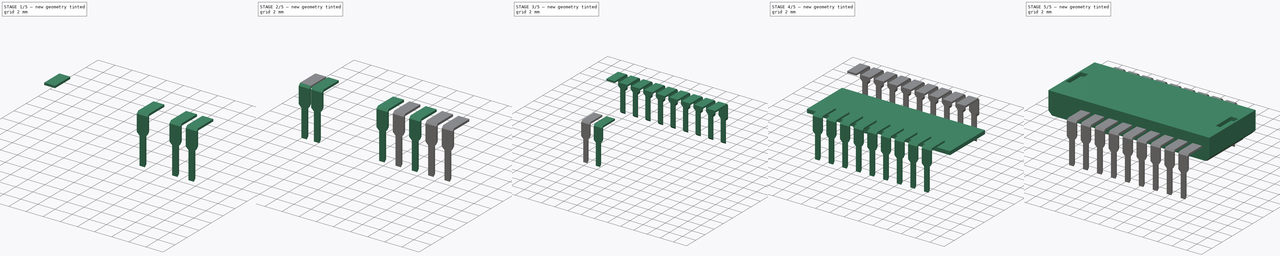
[diagram: build sequence overview — one tinted view per stage of 5, left to right]
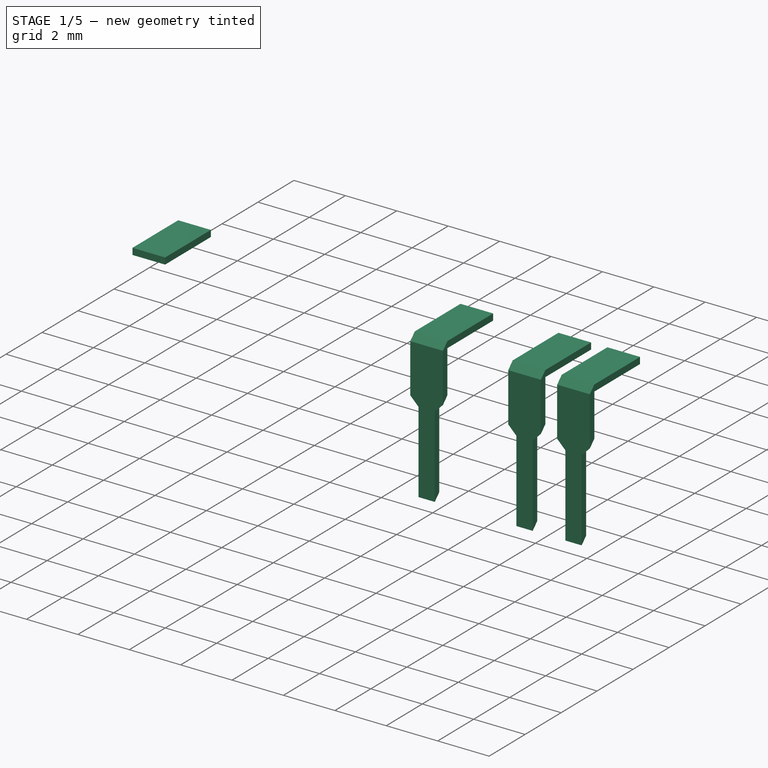
[diagram: stage 1 of 5 — iso view after this stage's code; geometry added in this stage tinted green]
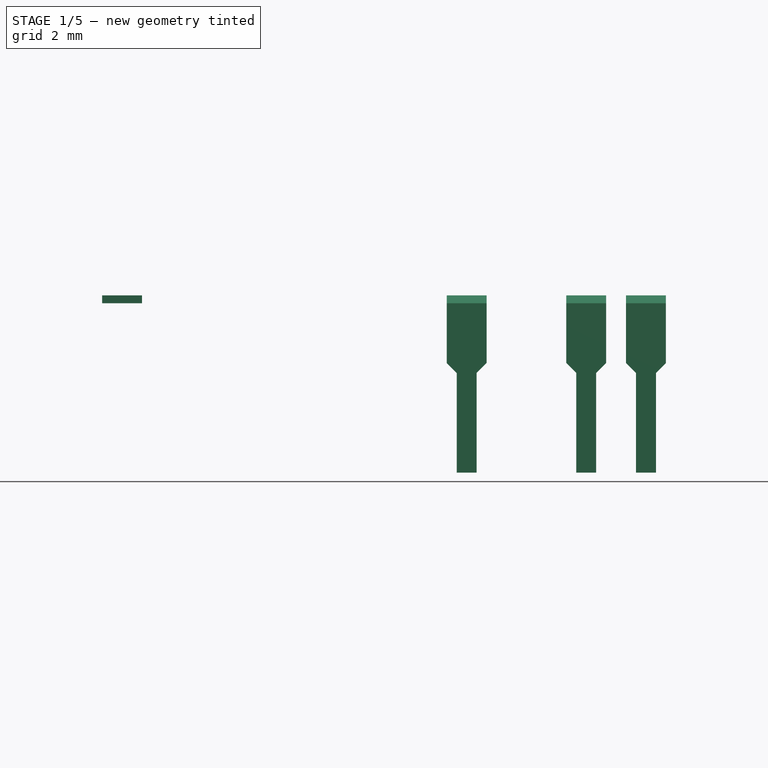
[diagram: stage 1 of 5 — front view after this stage's code; geometry added in this stage tinted green]
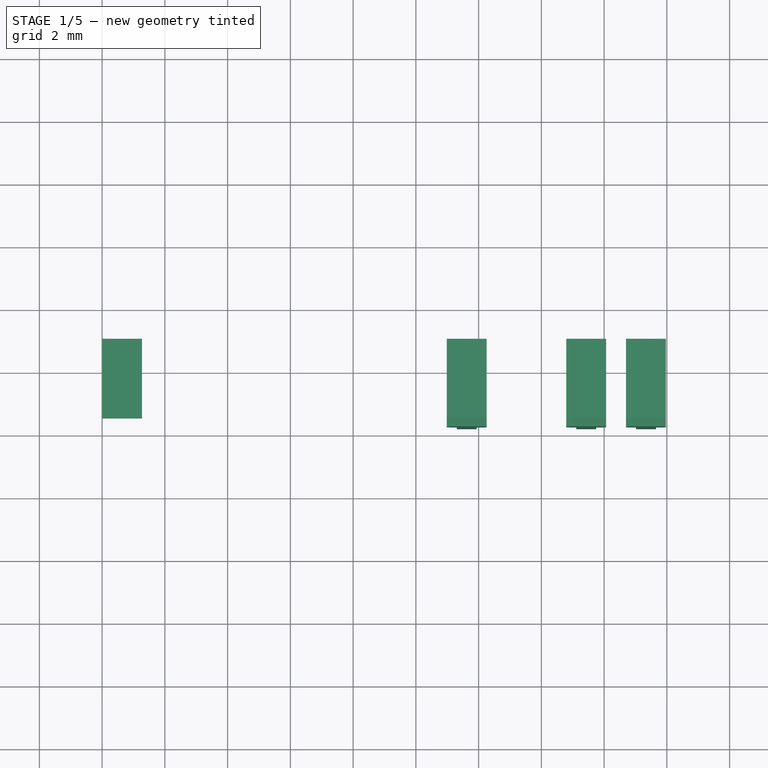
[diagram: stage 1 of 5 — top view after this stage's code; geometry added in this stage tinted green]
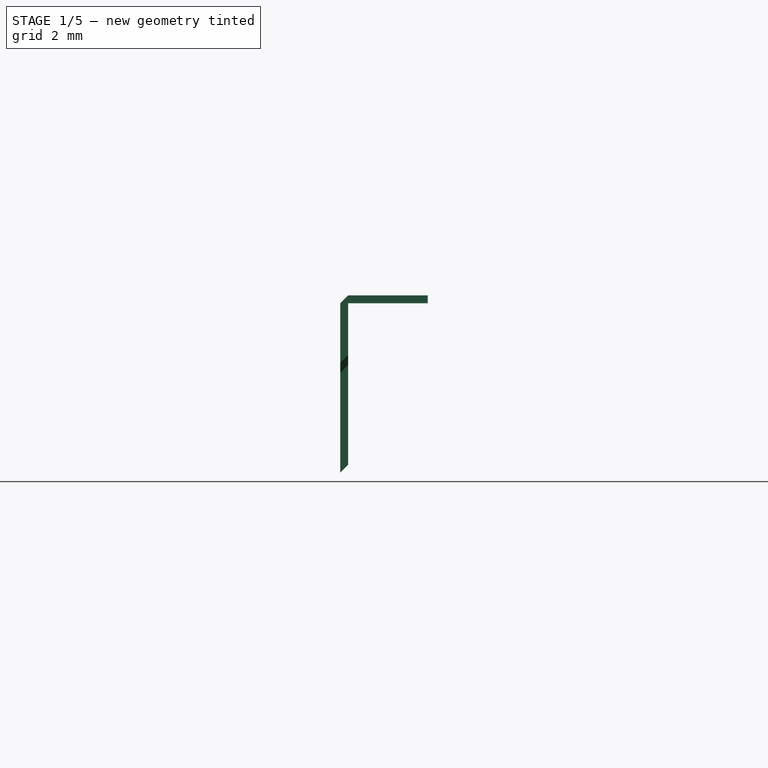
[diagram: stage 1 of 5 — right view after this stage's code; geometry added in this stage tinted green]
FCSTD DOCUMENT  (FreeCAD 0.14R3702 (Git))
Label: adns3080
License: CC-BY 3.0
LicenseURL: http://creativecommons.org/licenses/by/3.0/
objects: Part::Extrusion×23, Part::MultiFuse×21, Sketcher::SketchObject×7, Part::Compound×3, Part::Chamfer×2, Part::Cut×1
note: 57 computed .brp shape members not serialized (recipe doc carries the construction recipe); baked Part::Feature solids carry a one-line shape summary decoded from their .brp

FEATURE [Sketcher::SketchObject] Sketch004
  Placement = pos=(2,1,3) rot=(0,0,1;0rad)
  sketch-geometry (4):
    g0: LineSegment StartX=0 StartY=0 StartZ=0 EndX=0 EndY=-2.54 EndZ=0
    g1: LineSegment StartX=0 StartY=-2.54 StartZ=0 EndX=1.27 EndY=-2.54 EndZ=0
    g2: LineSegment StartX=0 StartY=0 StartZ=0 EndX=1.27 EndY=0 EndZ=0
    g3: LineSegment StartX=1.27 StartY=-2.54 StartZ=0 EndX=1.27 EndY=0 EndZ=0
  constraints (8):
    c: Coincident(g0,g-1)
    c: PointOnObject(g0,g-2)
    c: Coincident(g1,g0)
    c: Horizontal(g1)
    c: Coincident(g2,g-1)
    c: Horizontal(g2)
    c: Coincident(g3,g1)
    c: Vertical(g3)
FEATURE [Sketcher::SketchObject] Sketch005
  Placement = pos=(2,-1.5,3) rot=(1,0,0;1.5708rad)
  sketch-geometry (8):
    g0: LineSegment StartX=0 StartY=0 StartZ=0 EndX=1.27 EndY=0 EndZ=0
    g1: LineSegment StartX=0 StartY=0 StartZ=0 EndX=0 EndY=-1.905 EndZ=0
    g2: LineSegment StartX=0 StartY=-1.905 StartZ=0 EndX=0.3175 EndY=-2.2225 EndZ=0
    g3: LineSegment StartX=1.27 StartY=-1.905 StartZ=0 EndX=0.9525 EndY=-2.2225 EndZ=0
    g4: LineSegment StartX=1.27 StartY=0 StartZ=0 EndX=1.27 EndY=-1.905 EndZ=0
    g5: LineSegment StartX=0.3175 StartY=-2.2225 StartZ=0 EndX=0.3175 EndY=-5.3975 EndZ=0
    g6: LineSegment StartX=0.3175 StartY=-5.3975 StartZ=0 EndX=0.9525 EndY=-5.3975 EndZ=0
    g7: LineSegment StartX=0.9525 StartY=-5.3975 StartZ=0 EndX=0.9525 EndY=-2.2225 EndZ=0
  constraints (15):
    c: Coincident(g0,g-1)
    c: Horizontal(g0)
    c: Coincident(g1,g-1)
    c: Vertical(g1)
    c: Coincident(g2,g1)
    c: Coincident(g4,g0)
    c: Coincident(g4,g3)
    c: Vertical(g4)
    c: Coincident(g5,g2)
    c: Vertical(g5)
    c: Coincident(g6,g5)
    c: Horizontal(g6)
    c: Coincident(g7,g6)
    c: Coincident(g7,g3)
    c: Vertical(g7)
FEATURE [Part::Extrusion] Extrude016
  Base = -> Sketch005
  Dir = (0,0.25,0.25)
  Placement = pos=(0,-0.29,0.001) rot=(0,0,1;0rad)
  Solid = true
FEATURE [Part::Extrusion] Extrude017
  Base = -> Sketch004
  Dir = (0,0,0.25)
  Solid = true
FEATURE [Part::Extrusion] Extrude019
  Base = -> Sketch005
  Dir = (0,0.25,0.25)
  Placement = pos=(0,-0.29,0.001) rot=(0,0,1;0rad)
  Solid = true
FEATURE [Part::Extrusion] Extrude020
  Base = -> Sketch004
  Dir = (0,0,0.25)
  Solid = true
FEATURE [Part::Extrusion] Extrude021
  Base = -> Sketch005
  Dir = (0,0.25,0.25)
  Placement = pos=(0,-0.29,0.001) rot=(0,0,1;0rad)
  Solid = true
FEATURE [Part::Extrusion] Extrude022
  Base = -> Sketch004
  Dir = (0,0,0.25)
  Solid = true
FEATURE [Part::Extrusion] Extrude024
  Base = -> Sketch004
  Dir = (0,0,0.25)
  Solid = true
FEATURE [Part::MultiFuse] Fusion036
  Placement = pos=(10.985,0,0) rot=(0,0,1;0rad)
  Shapes = -> [Extrude022,Extrude021]
FEATURE [Part::MultiFuse] Fusion037
  Placement = pos=(14.795,0,0) rot=(0,0,1;0rad)
  Shapes = -> [Extrude020,Extrude019]
FEATURE [Part::MultiFuse] Fusion038
  Placement = pos=(16.7,0,0) rot=(0,0,1;0rad)
  Shapes = -> [Extrude017,Extrude016]
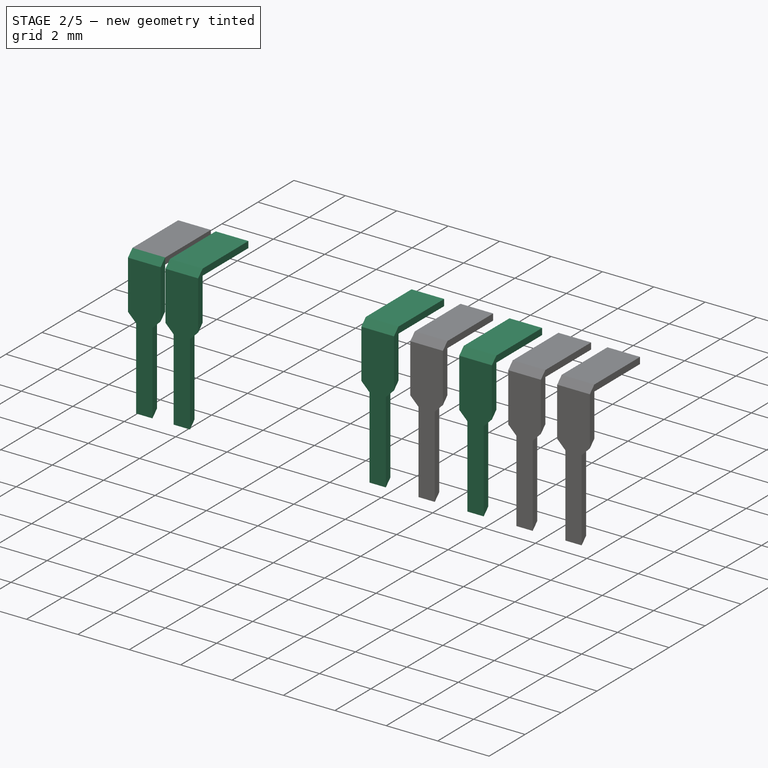
[diagram: stage 2 of 5 — iso view after this stage's code; geometry added in this stage tinted green]
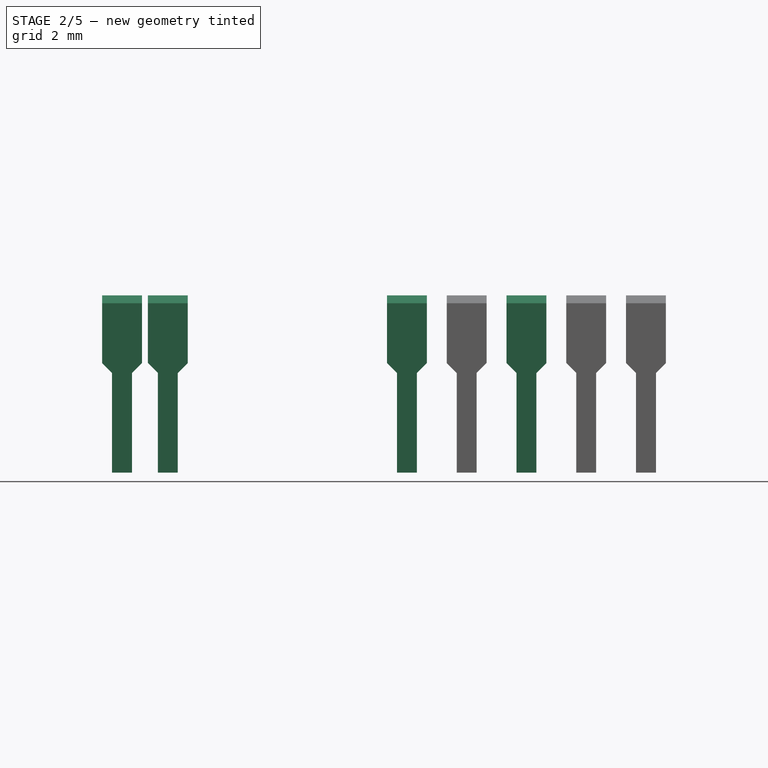
[diagram: stage 2 of 5 — front view after this stage's code; geometry added in this stage tinted green]
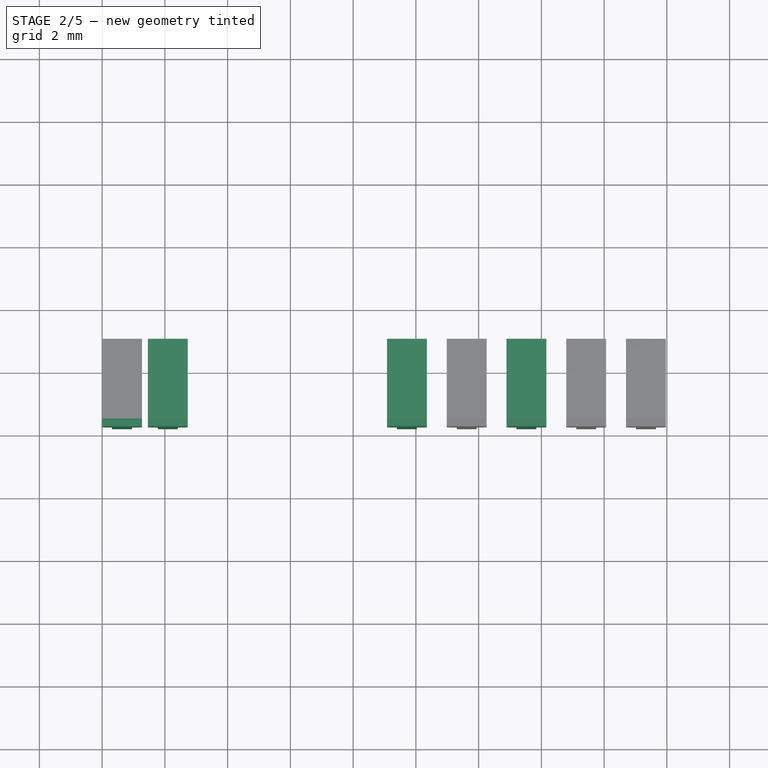
[diagram: stage 2 of 5 — top view after this stage's code; geometry added in this stage tinted green]
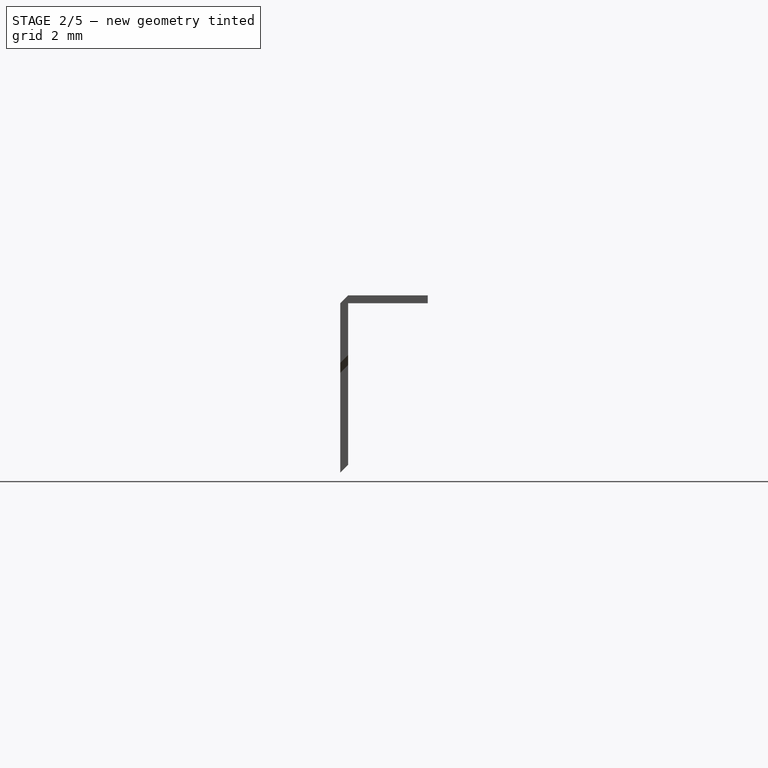
[diagram: stage 2 of 5 — right view after this stage's code; geometry added in this stage tinted green]
FEATURE [Part::Extrusion] Extrude023
  Base = -> Sketch005
  Dir = (0,0.25,0.25)
  Placement = pos=(0,-0.29,0.001) rot=(0,0,1;0rad)
  Solid = true
FEATURE [Part::Extrusion] Extrude025
  Base = -> Sketch004
  Dir = (0,0,0.25)
  Solid = true
FEATURE [Part::Extrusion] Extrude029
  Base = -> Sketch005
  Dir = (0,0.25,0.25)
  Placement = pos=(0,-0.29,0.001) rot=(0,0,1;0rad)
  Solid = true
FEATURE [Part::Extrusion] Extrude031
  Base = -> Sketch005
  Dir = (0,0.25,0.25)
  Placement = pos=(0,-0.29,0.001) rot=(0,0,1;0rad)
  Solid = true
FEATURE [Part::Extrusion] Extrude032
  Base = -> Sketch004
  Dir = (0,0,0.25)
  Solid = true
FEATURE [Part::Extrusion] Extrude033
  Base = -> Sketch005
  Dir = (0,0.25,0.25)
  Placement = pos=(0,-0.29,0.001) rot=(0,0,1;0rad)
  Solid = true
FEATURE [Part::Extrusion] Extrude034
  Base = -> Sketch004
  Dir = (0,0,0.25)
  Solid = true
FEATURE [Part::MultiFuse] Fusion033
  Placement = pos=(1.46,0,0) rot=(0,0,1;0rad)
  Shapes = -> [Extrude034,Extrude033]
FEATURE [Part::MultiFuse] Fusion034
  Placement = pos=(9.08,0,0) rot=(0,0,1;0rad)
  Shapes = -> [Extrude025,Extrude029]
FEATURE [Part::MultiFuse] Fusion035
  Placement = pos=(12.89,0,0) rot=(0,0,1;0rad)
  Shapes = -> [Extrude024,Extrude023]
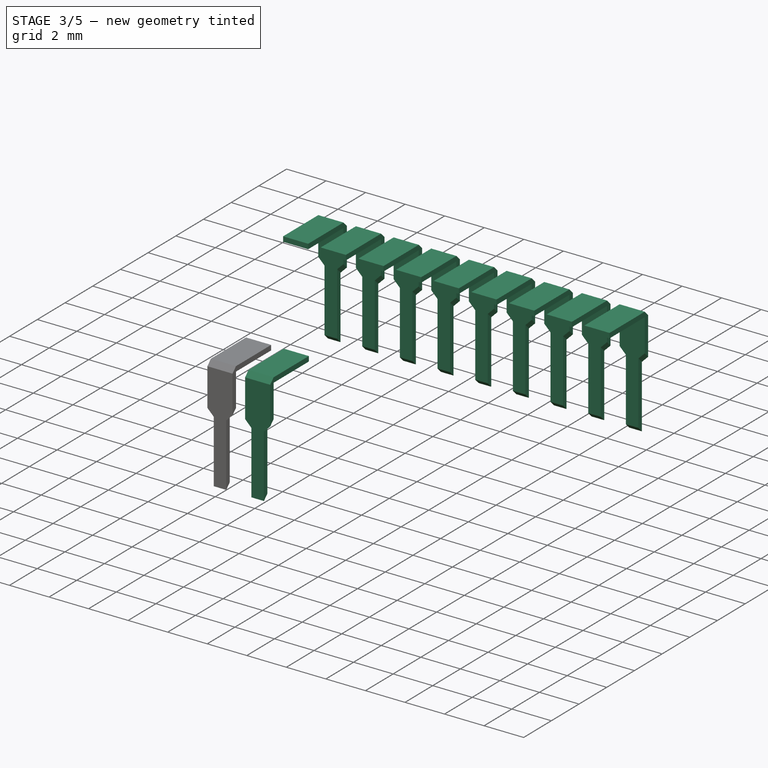
[diagram: stage 3 of 5 — iso view after this stage's code; geometry added in this stage tinted green]
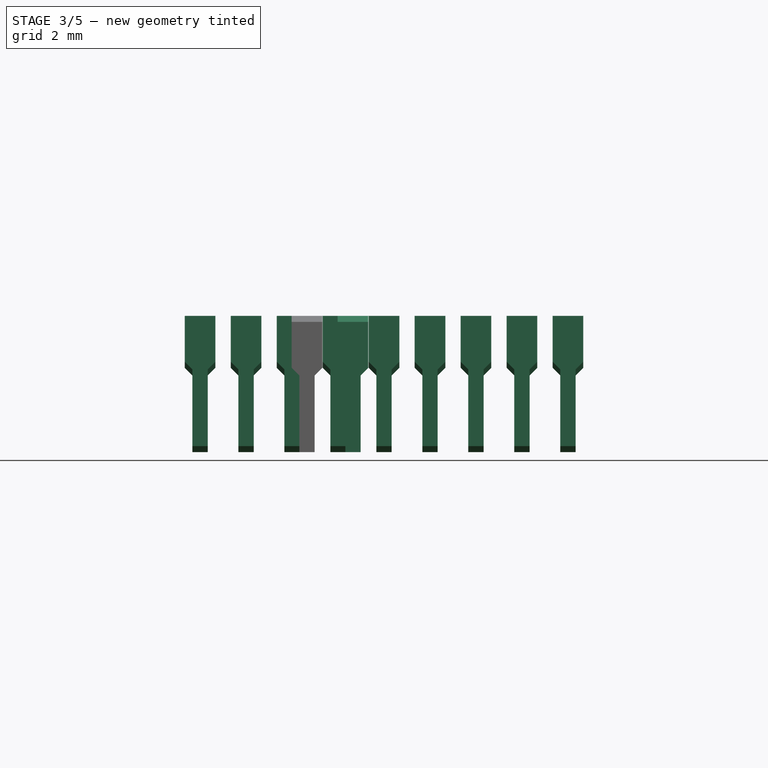
[diagram: stage 3 of 5 — front view after this stage's code; geometry added in this stage tinted green]
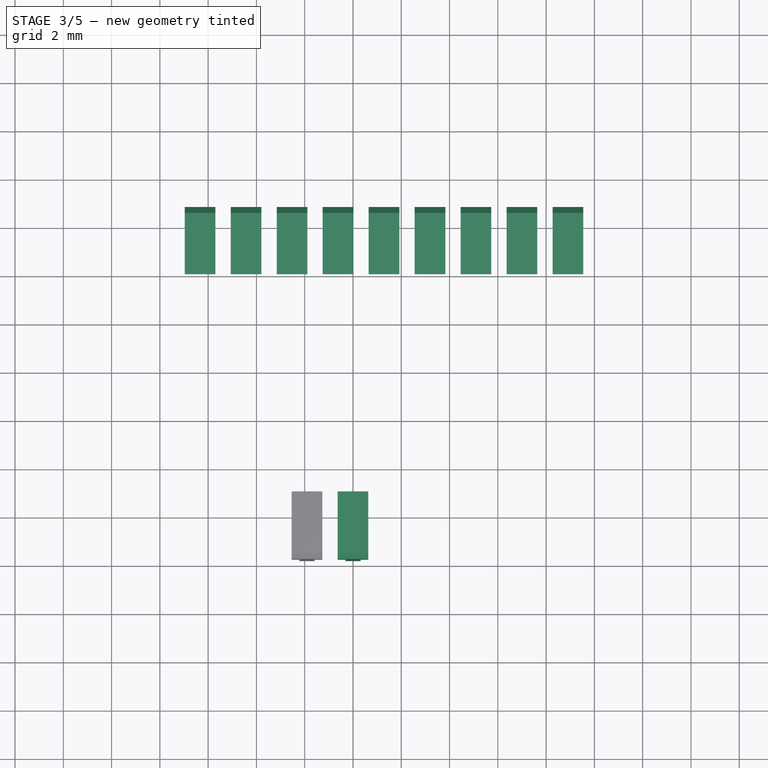
[diagram: stage 3 of 5 — top view after this stage's code; geometry added in this stage tinted green]
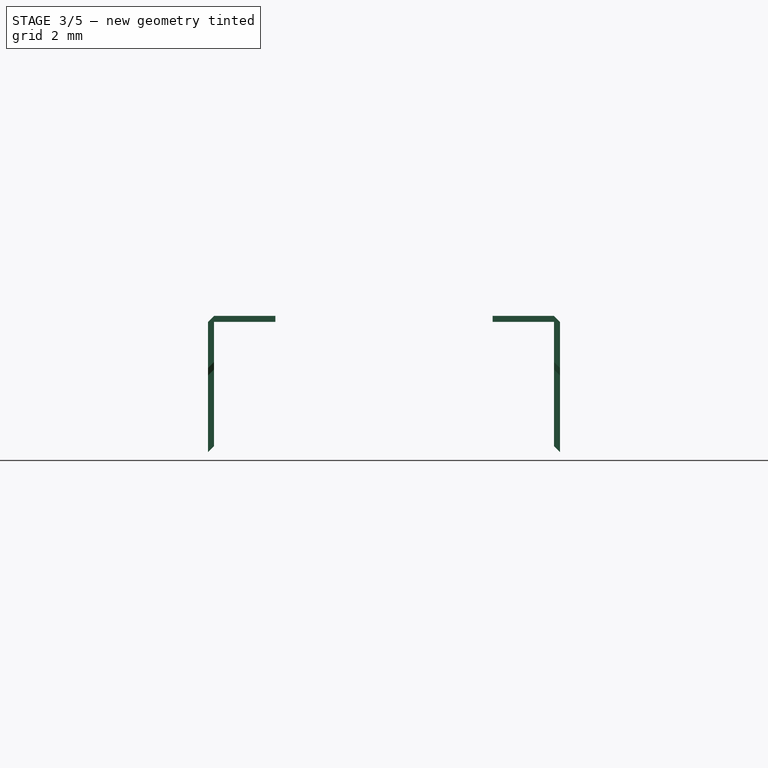
[diagram: stage 3 of 5 — right view after this stage's code; geometry added in this stage tinted green]
FEATURE [Part::Extrusion] Extrude026
  Base = -> Sketch005
  Dir = (0,0.25,0.25)
  Placement = pos=(0,-0.29,0.001) rot=(0,0,1;0rad)
  Solid = true
FEATURE [Part::Extrusion] Extrude027
  Base = -> Sketch004
  Dir = (0,0,0.25)
  Solid = true
FEATURE [Part::Extrusion] Extrude028
  Base = -> Sketch005
  Dir = (0,0.25,0.25)
  Placement = pos=(0,-0.29,0.001) rot=(0,0,1;0rad)
  Solid = true
FEATURE [Part::Extrusion] Extrude030
  Base = -> Sketch004
  Dir = (0,0,0.25)
  Solid = true
FEATURE [Part::MultiFuse] Fusion028
  Placement = pos=(3.365,0,0) rot=(0,0,1;0rad)
  Shapes = -> [Extrude030,Extrude028]
FEATURE [Part::MultiFuse] Fusion029
  Placement = pos=(1.46,0,0) rot=(0,0,1;0rad)
  Shapes = -> [Extrude034,Extrude033]
FEATURE [Part::MultiFuse] Fusion030
  Placement = pos=(7.175,0,0) rot=(0,0,1;0rad)
  Shapes = -> [Extrude027,Extrude026]
FEATURE [Part::MultiFuse] Fusion031
  Placement = pos=(3.365,0,0) rot=(0,0,1;0rad)
  Shapes = -> [Extrude030,Extrude028]
FEATURE [Part::MultiFuse] Fusion032
  Placement = pos=(5.27,0,0) rot=(0,0,1;0rad)
  Shapes = -> [Extrude032,Extrude031]
FEATURE [Part::Compound] Compound001  label="pins002"
  Links = -> [Fusion038,Fusion037,Fusion036,Fusion035,Fusion034,Fusion032,Fusion030,Fusion031,Fusion033]
  Placement = pos=(19,11,0) rot=(0,0,1;3.14159rad)
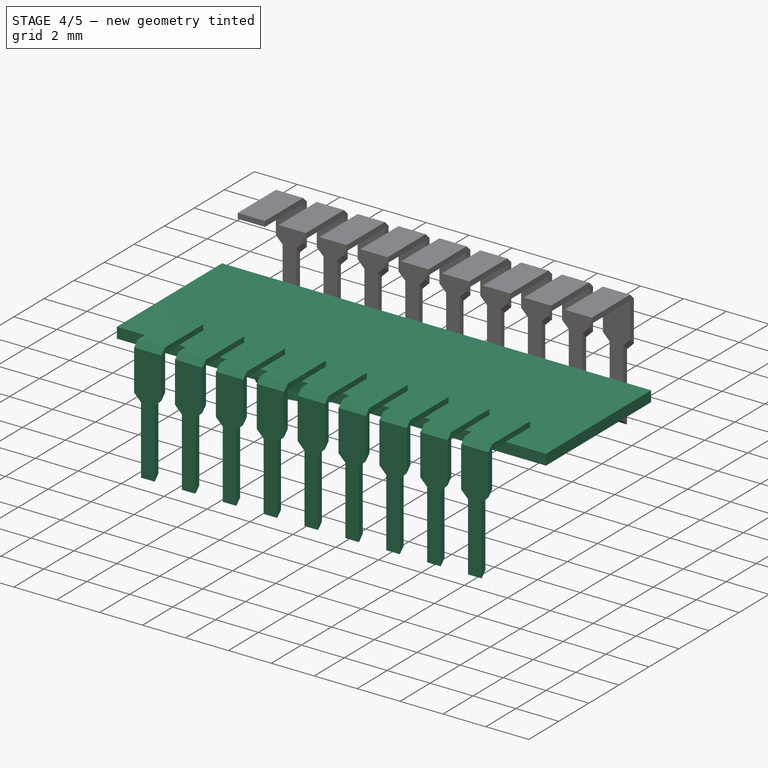
[diagram: stage 4 of 5 — iso view after this stage's code; geometry added in this stage tinted green]
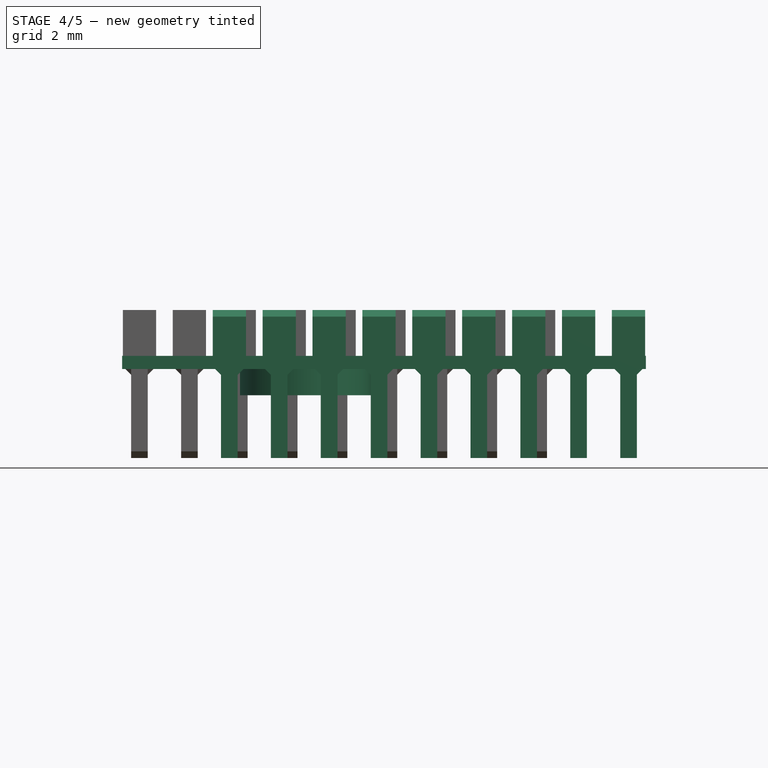
[diagram: stage 4 of 5 — front view after this stage's code; geometry added in this stage tinted green]
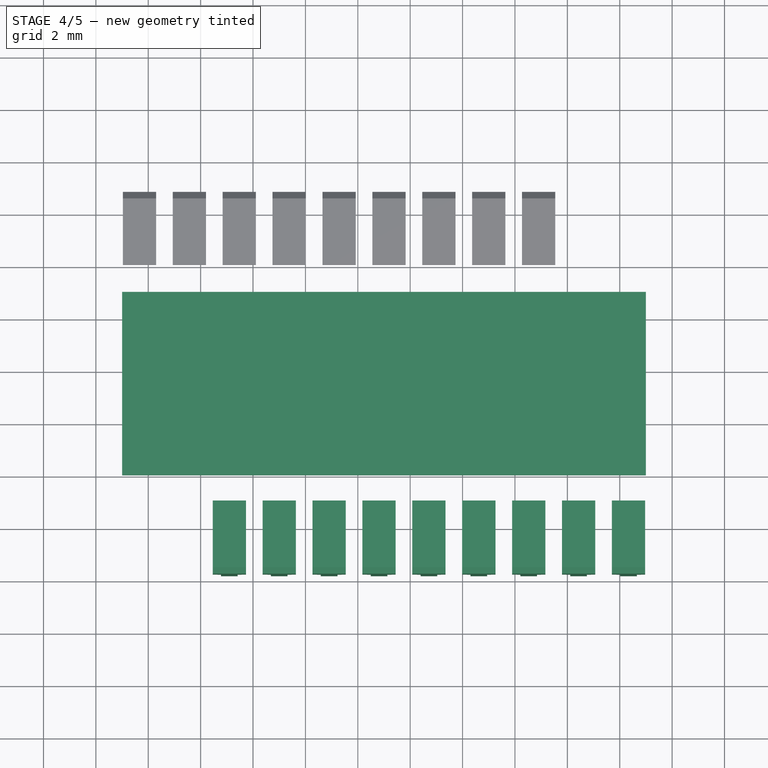
[diagram: stage 4 of 5 — top view after this stage's code; geometry added in this stage tinted green]
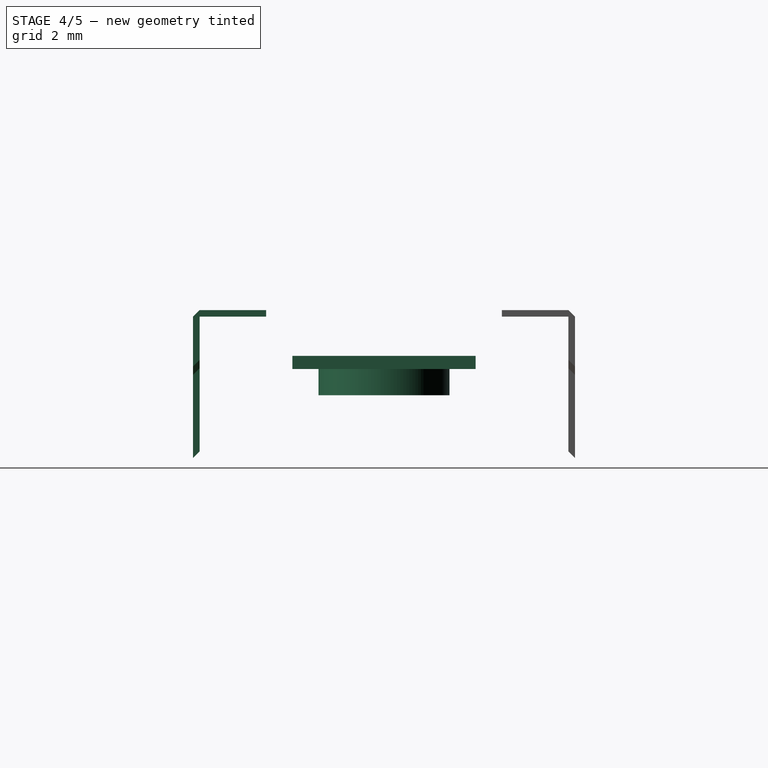
[diagram: stage 4 of 5 — right view after this stage's code; geometry added in this stage tinted green]
FEATURE [Part::Extrusion] Extrude003
  Base = -> Sketch003
  Dir = (0,0,1)
  Solid = true
FEATURE [Part::MultiFuse] Fusion019
  Placement = pos=(16.7,0,0) rot=(0,0,1;0rad)
  Shapes = -> [Extrude017,Extrude016]
FEATURE [Part::Extrusion] Extrude018  label="am I right?"
  Base = -> Sketch006
  Dir = (0,0,0.5)
  Solid = true
FEATURE [Part::MultiFuse] Fusion022
  Placement = pos=(14.795,0,0) rot=(0,0,1;0rad)
  Shapes = -> [Extrude020,Extrude019]
FEATURE [Part::MultiFuse] Fusion023
  Placement = pos=(10.985,0,0) rot=(0,0,1;0rad)
  Shapes = -> [Extrude022,Extrude021]
FEATURE [Part::MultiFuse] Fusion024
  Placement = pos=(12.89,0,0) rot=(0,0,1;0rad)
  Shapes = -> [Extrude024,Extrude023]
FEATURE [Part::MultiFuse] Fusion025
  Placement = pos=(9.08,0,0) rot=(0,0,1;0rad)
  Shapes = -> [Extrude025,Extrude029]
FEATURE [Part::MultiFuse] Fusion027
  Placement = pos=(7.175,0,0) rot=(0,0,1;0rad)
  Shapes = -> [Extrude027,Extrude026]
FEATURE [Part::MultiFuse] Fusion026
  Placement = pos=(5.27,0,0) rot=(0,0,1;0rad)
  Shapes = -> [Extrude032,Extrude031]
FEATURE [Part::Compound] Compound  label="pins001"
  Links = -> [Fusion019,Fusion022,Fusion023,Fusion024,Fusion025,Fusion026,Fusion027,Fusion028,Fusion029]
  Placement = pos=(-1,0,0) rot=(0,0,1;0rad)
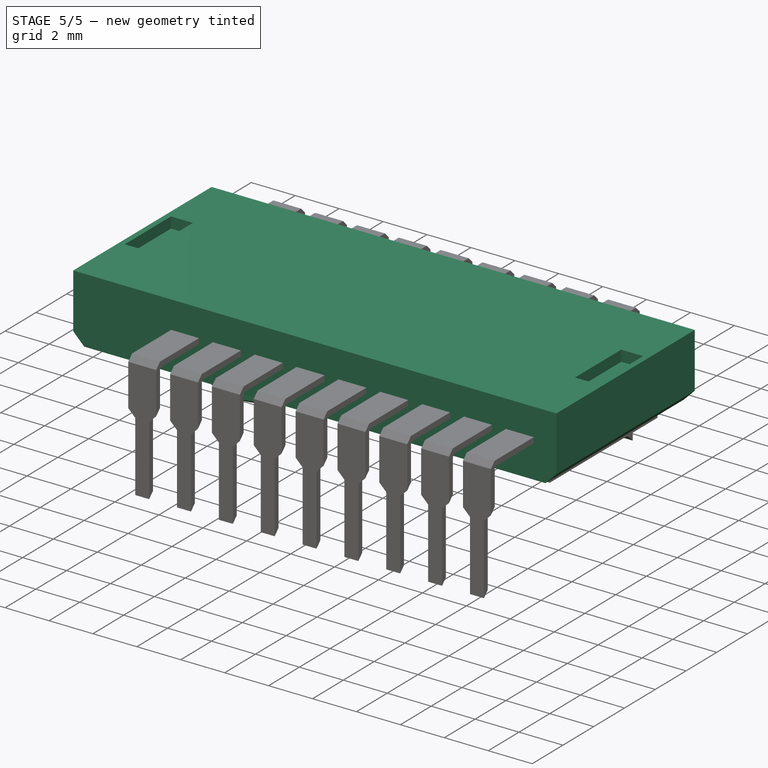
[diagram: stage 5 of 5 — iso view after this stage's code; geometry added in this stage tinted green]
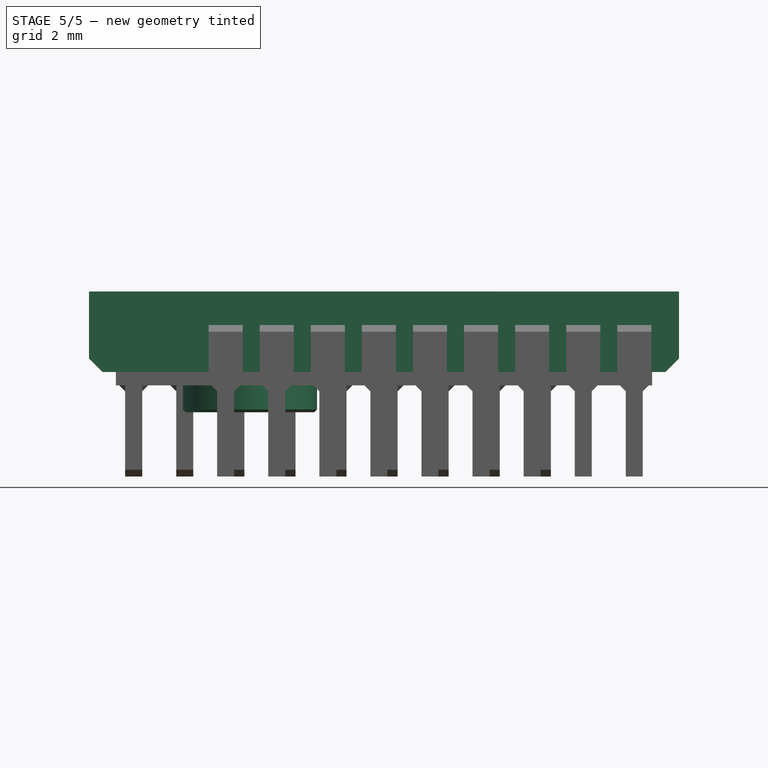
[diagram: stage 5 of 5 — front view after this stage's code; geometry added in this stage tinted green]
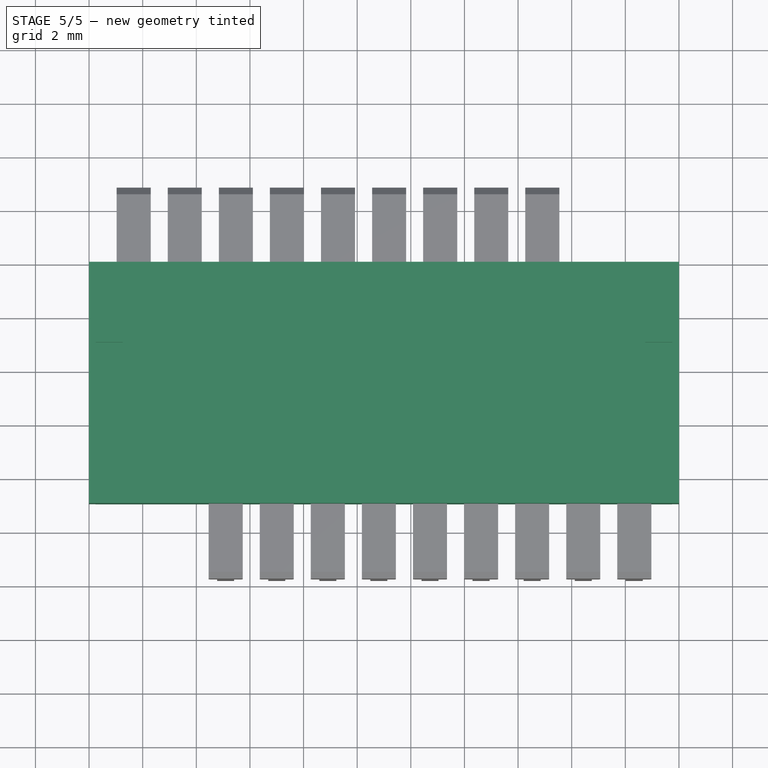
[diagram: stage 5 of 5 — top view after this stage's code; geometry added in this stage tinted green]
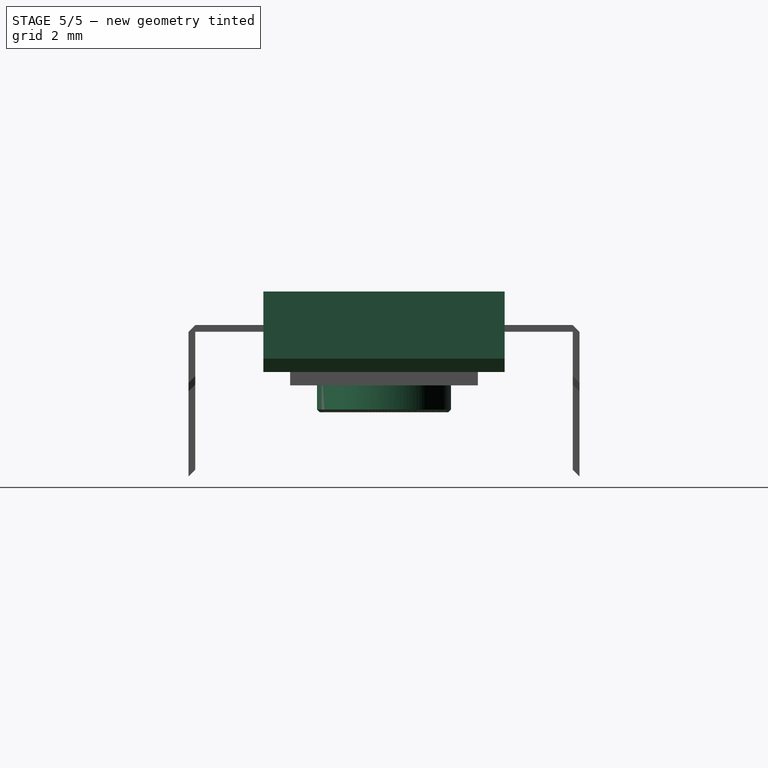
[diagram: stage 5 of 5 — right view after this stage's code; geometry added in this stage tinted green]
FEATURE [Sketcher::SketchObject] Sketch
  Placement = pos=(0,0,1.5) rot=(0,0,1;0rad)
  sketch-geometry (4):
    g0: LineSegment StartX=20 StartY=1 StartZ=0 EndX=20 EndY=10 EndZ=0
    g1: LineSegment StartX=20 StartY=10 StartZ=0 EndX=-2 EndY=10 EndZ=0
    g2: LineSegment StartX=-2 StartY=10 StartZ=0 EndX=-2 EndY=1 EndZ=0
    g3: LineSegment StartX=-2 StartY=1 StartZ=0 EndX=20 EndY=1 EndZ=0
  constraints (8):
    c: Vertical(g0)
    c: Coincident(g1,g0)
    c: Horizontal(g1)
    c: Coincident(g2,g1)
    c: Vertical(g2)
    c: Coincident(g3,g2)
    c: Coincident(g3,g0)
    c: Horizontal(g3)
FEATURE [Sketcher::SketchObject] Sketch001
  Placement = pos=(0,1,4) rot=(0,0,1;0rad)
  sketch-geometry (4):
    g0: LineSegment StartX=0.25 StartY=3 StartZ=0 EndX=0.25 EndY=6 EndZ=0
    g1: LineSegment StartX=0.25 StartY=6 StartZ=0 EndX=1.25 EndY=6 EndZ=0
    g2: LineSegment StartX=1.25 StartY=6 StartZ=0 EndX=1.25 EndY=3 EndZ=0
    g3: LineSegment StartX=0.25 StartY=3 StartZ=0 EndX=1.25 EndY=3 EndZ=0
  constraints (8):
    c: Vertical(g0)
    c: Coincident(g1,g0)
    c: Horizontal(g1)
    c: Coincident(g2,g1)
    c: Vertical(g2)
    c: Coincident(g3,g0)
    c: Coincident(g3,g2)
    c: Horizontal(g3)
FEATURE [Sketcher::SketchObject] Sketch002
  Placement = pos=(18.5,1,4) rot=(0,0,1;0rad)
  sketch-geometry (4):
    g0: LineSegment StartX=0.25 StartY=3 StartZ=0 EndX=0.25 EndY=6 EndZ=0
    g1: LineSegment StartX=0.25 StartY=6 StartZ=0 EndX=1.25 EndY=6 EndZ=0
    g2: LineSegment StartX=1.25 StartY=6 StartZ=0 EndX=1.25 EndY=3 EndZ=0
    g3: LineSegment StartX=0.25 StartY=3 StartZ=0 EndX=1.25 EndY=3 EndZ=0
  constraints (8):
    c: Vertical(g0)
    c: Coincident(g1,g0)
    c: Horizontal(g1)
    c: Coincident(g2,g1)
    c: Vertical(g2)
    c: Coincident(g3,g0)
    c: Coincident(g3,g2)
    c: Horizontal(g3)
FEATURE [Sketcher::SketchObject] Sketch003
  Placement = pos=(-0.5,0,0) rot=(0,0,1;0rad)
  sketch-geometry (1):
    g0: Circle CenterX=6.5 CenterY=5.5 CenterZ=0 NormalX=0 NormalY=0 NormalZ=1 Radius=2.5
FEATURE [Part::Extrusion] Extrude001
  Base = -> Sketch001
  Dir = (0,0,1)
  Placement = pos=(-2,0,0) rot=(0,0,1;0rad)
  Solid = true
FEATURE [Part::Extrusion] Extrude002
  Base = -> Sketch002
  Dir = (0,0,1)
  Solid = true
FEATURE [Part::Chamfer] Chamfer  label="Chamfer001"
  Base = -> Extrude003
  Edges = 1 edges r=0.1: [Edge2]
  Placement = pos=(-2,0,0) rot=(0,0,1;0rad)
FEATURE [Sketcher::SketchObject] Sketch006  label="2mm error is no joke"
  Placement = pos=(0,0,1) rot=(0,0,1;0rad)
  sketch-geometry (4):
    g0: LineSegment StartX=-1 StartY=9 StartZ=0 EndX=-1 EndY=2 EndZ=0
    g1: LineSegment StartX=-1 StartY=9 StartZ=0 EndX=19 EndY=9 EndZ=0
    g2: LineSegment StartX=19 StartY=9 StartZ=0 EndX=19 EndY=2 EndZ=0
    g3: LineSegment StartX=-1 StartY=2 StartZ=0 EndX=19 EndY=2 EndZ=0
  constraints (8):
    c: Vertical(g0)
    c: Coincident(g1,g0)
    c: Horizontal(g1)
    c: Coincident(g2,g1)
    c: Vertical(g2)
    c: Coincident(g3,g0)
    c: Coincident(g3,g2)
    c: Horizontal(g3)
FEATURE [Part::Extrusion] Extrude
  Base = -> Sketch
  Dir = (0,0,3)
  Solid = true
FEATURE [Part::Chamfer] Chamfer001  label="Chamfer002"
  Base = -> Extrude
  Edges = 2 edges r=0.5: [Edge3,Edge9]
FEATURE [Part::MultiFuse] Fusion
  Shapes = -> [Extrude002,Extrude001]
FEATURE [Part::Cut] Cut
  Base = -> Chamfer001
  Tool = -> Fusion
FEATURE [Part::MultiFuse] Fusion020  label="more like, got bodied by invalid measurements"
  Shapes = -> [Extrude018,Chamfer]
FEATURE [Part::MultiFuse] Fusion021  label="body"
  Shapes = -> [Cut,Fusion020]
FEATURE [Part::Compound] Compound002  label="ADNS3080"
  Links = -> [Fusion021,Compound,Compound001]
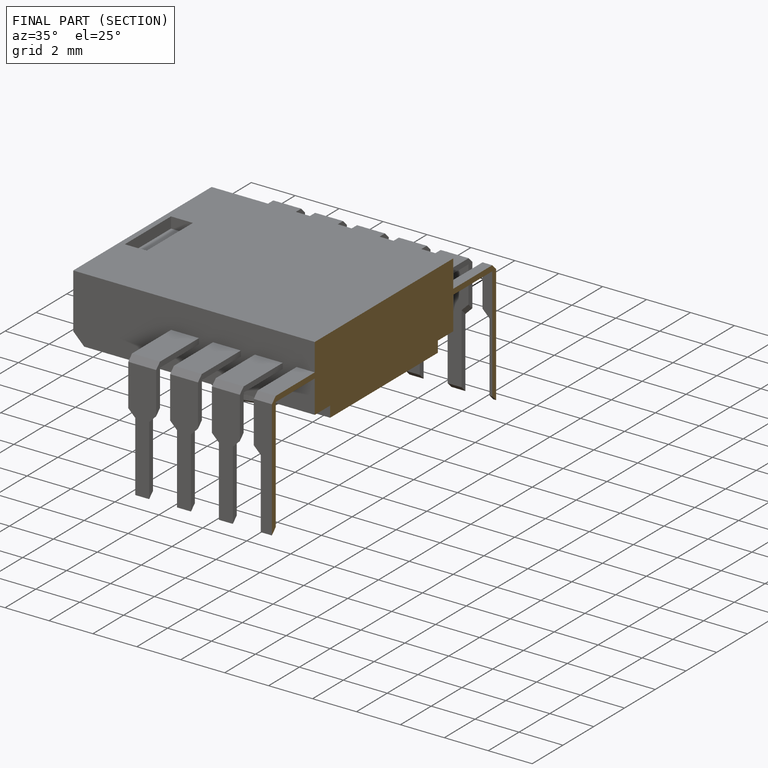
[diagram: finished part — half-section view (interior)]
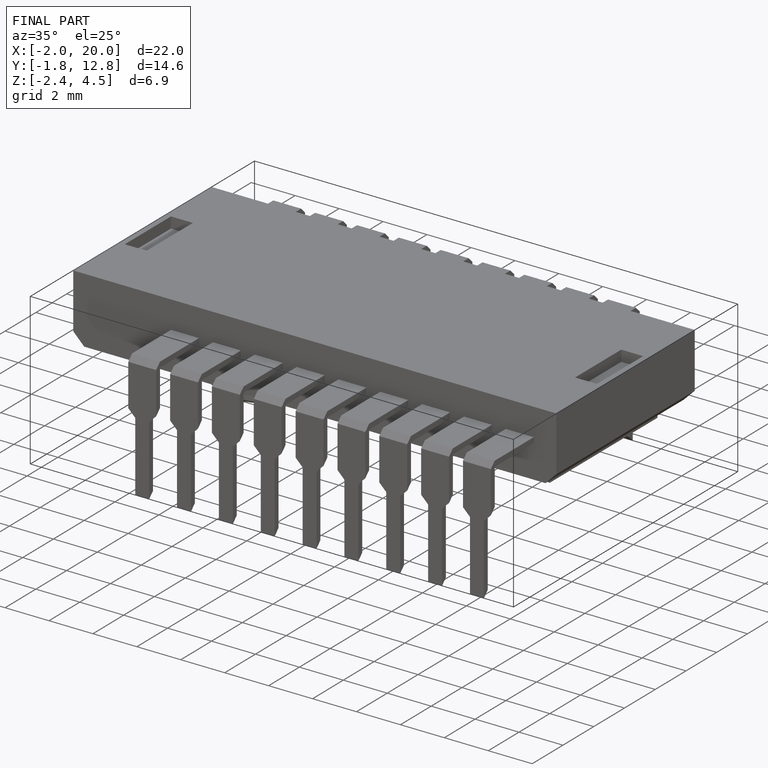
[diagram: finished part — iso view with bounding-box wireframe]
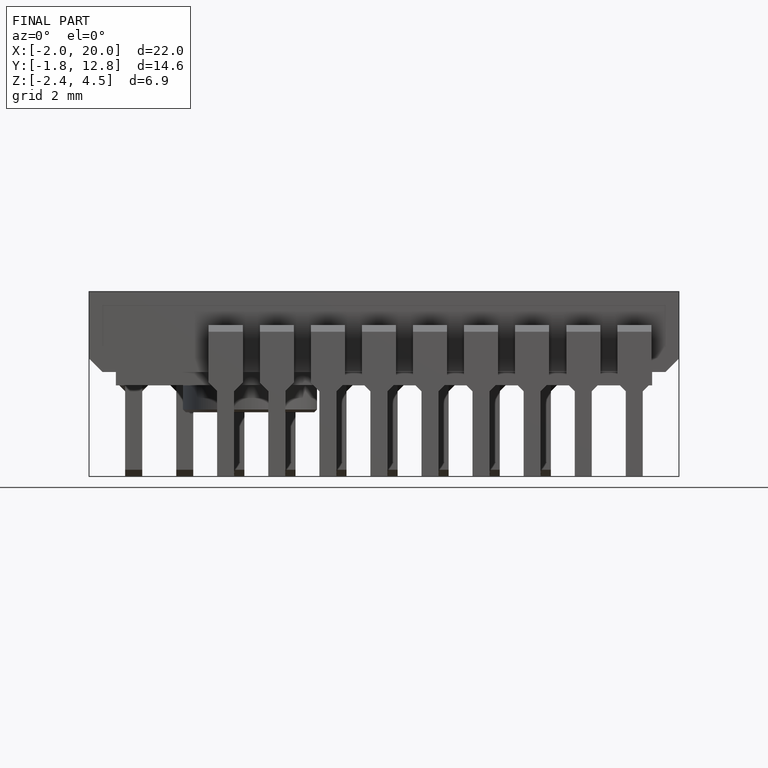
[diagram: finished part — front view with bounding-box wireframe]
